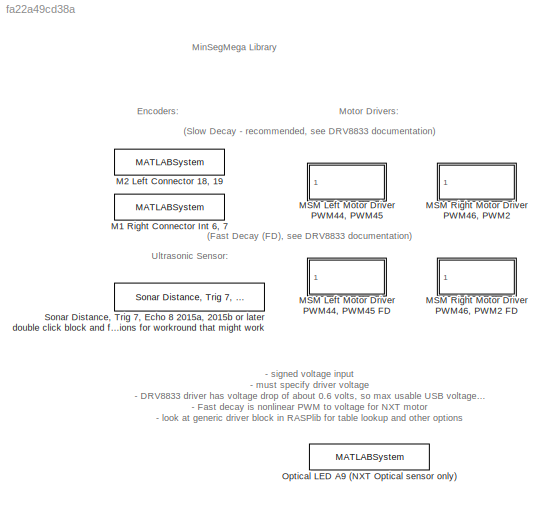
MODEL slx_fa22a49cd38a
KIND library
CONFIG AbsTol = auto
CONFIG FixedStep = auto
CONFIG MaxStep = auto
CONFIG MinStep = auto
CONFIG RelTol = 1e-3
CONFIG SampleTimeConstraint = Unconstrained
CONFIG Solver = ode45
CONFIG SolverMode = Auto
CONFIG SolverName = ode45
CONFIG StartTime = 0.0
CONFIG StopTime = 10.0
BLOCK [MATLABSystem] M1 Right Connector Int 6, 7
  Encoder = 2
  MaskDisplay = disp('soEncoder');\nport_label('output',1,'y');
  MaskType = Encoder_arduino
  PinA = 6
  PinB = 7
  Ports = [0, 1]
  System = Encoder_arduino
BLOCK [MATLABSystem] M2 Left Connector 18, 19
  Encoder = 1
  MaskDisplay = disp('soEncoder');\nport_label('output',1,'y');
  MaskType = Encoder_arduino
  PinA = 19
  PinB = 18
  Ports = [0, 1]
  System = Encoder_arduino
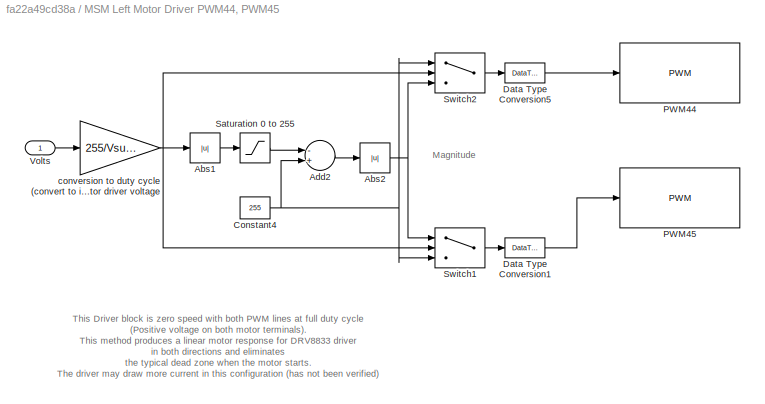
BLOCK [SubSystem] MSM Left Motor Driver PWM44, PWM45
  Ports = [1]
  RequestExecContextInheritance = off
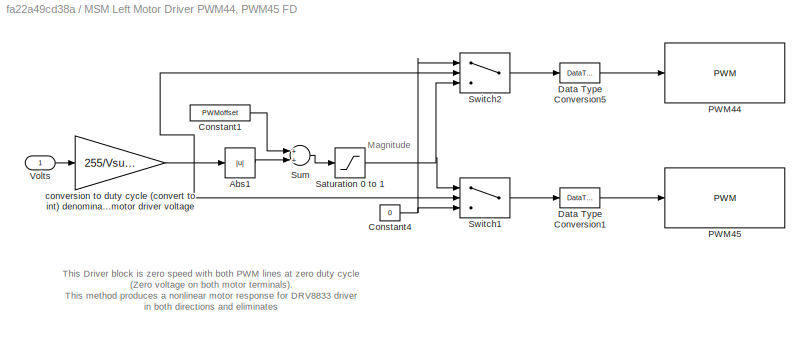
BLOCK [SubSystem] MSM Left Motor Driver PWM44, PWM45 FD
  Ports = [1]
  RequestExecContextInheritance = off
BLOCK [Abs] MSM Left Motor Driver PWM44, PWM45 FD/Abs1
  SaturateOnIntegerOverflow = off
BLOCK [Constant] MSM Left Motor Driver PWM44, PWM45 FD/Constant1
  Value = PWMoffset
BLOCK [Constant] MSM Left Motor Driver PWM44, PWM45 FD/Constant4
  Value = 0
BLOCK [DataTypeConversion] MSM Left Motor Driver PWM44, PWM45 FD/Data Type Conversion1
  OutDataTypeStr = uint8
  RndMeth = Floor
  SaturateOnIntegerOverflow = off
BLOCK [DataTypeConversion] MSM Left Motor Driver PWM44, PWM45 FD/Data Type Conversion5
  OutDataTypeStr = uint8
  RndMeth = Floor
  SaturateOnIntegerOverflow = off
BLOCK [Reference] MSM Left Motor Driver PWM44, PWM45 FD/PWM44  REF=arduinolib/PWM
  Ports = [1]
  SourceBlock = arduinolib/PWM
  SourceType = Arduino PWM
  blockPlatform = arduino
  pinNumber = 44
BLOCK [Reference] MSM Left Motor Driver PWM44, PWM45 FD/PWM45  REF=arduinolib/PWM
  Ports = [1]
  SourceBlock = arduinolib/PWM
  SourceType = Arduino PWM
  blockPlatform = arduino
  pinNumber = 45
BLOCK [Saturate] MSM Left Motor Driver PWM44, PWM45 FD/Saturation 0 to 1
  InputPortMap = u0
  LowerLimit = 0
  Ports = [1, 1]
  UpperLimit = 255
BLOCK [Sum] MSM Left Motor Driver PWM44, PWM45 FD/Sum
  InputSameDT = off
  OutDataTypeStr = Inherit: Inherit via internal rule
  Ports = [2, 1]
  SaturateOnIntegerOverflow = off
BLOCK [Switch] MSM Left Motor Driver PWM44, PWM45 FD/Switch1
  InputSameDT = off
  SaturateOnIntegerOverflow = off
BLOCK [Switch] MSM Left Motor Driver PWM44, PWM45 FD/Switch2
  InputSameDT = off
  SaturateOnIntegerOverflow = off
BLOCK [Inport] MSM Left Motor Driver PWM44, PWM45 FD/Volts
  IconDisplay = Port number
BLOCK [Gain] MSM Left Motor Driver PWM44, PWM45 FD/conversion to duty cycle (convert to int) denominator is motor driver voltage
  Gain = 255/Vsupply
  OutDataTypeStr = int16
  ParamDataTypeStr = Inherit: Inherit via internal rule
  SaturateOnIntegerOverflow = off
BLOCK [Abs] MSM Left Motor Driver PWM44, PWM45/Abs1
  SaturateOnIntegerOverflow = off
BLOCK [Abs] MSM Left Motor Driver PWM44, PWM45/Abs2
  SaturateOnIntegerOverflow = off
BLOCK [Sum] MSM Left Motor Driver PWM44, PWM45/Add2
  InputSameDT = off
  Inputs = -+
  OutDataTypeStr = Inherit: Inherit via internal rule
  Ports = [2, 1]
  SaturateOnIntegerOverflow = off
BLOCK [Constant] MSM Left Motor Driver PWM44, PWM45/Constant4
  Value = 255
BLOCK [DataTypeConversion] MSM Left Motor Driver PWM44, PWM45/Data Type Conversion1
  OutDataTypeStr = uint8
  RndMeth = Floor
  SaturateOnIntegerOverflow = off
BLOCK [DataTypeConversion] MSM Left Motor Driver PWM44, PWM45/Data Type Conversion5
  OutDataTypeStr = uint8
  RndMeth = Floor
  SaturateOnIntegerOverflow = off
BLOCK [Reference] MSM Left Motor Driver PWM44, PWM45/PWM44  REF=arduinolib/PWM
  Ports = [1]
  SourceBlock = arduinolib/PWM
  SourceType = Arduino PWM
  blockPlatform = arduino
  pinNumber = 44
BLOCK [Reference] MSM Left Motor Driver PWM44, PWM45/PWM45  REF=arduinolib/PWM
  Ports = [1]
  SourceBlock = arduinolib/PWM
  SourceType = Arduino PWM
  blockPlatform = arduino
  pinNumber = 45
BLOCK [Saturate] MSM Left Motor Driver PWM44, PWM45/Saturation 0 to 255
  InputPortMap = u0
  LowerLimit = 0
  Ports = [1, 1]
  UpperLimit = 255
BLOCK [Switch] MSM Left Motor Driver PWM44, PWM45/Switch1
  InputSameDT = off
  SaturateOnIntegerOverflow = off
BLOCK [Switch] MSM Left Motor Driver PWM44, PWM45/Switch2
  InputSameDT = off
  SaturateOnIntegerOverflow = off
BLOCK [Inport] MSM Left Motor Driver PWM44, PWM45/Volts
  IconDisplay = Port number
BLOCK [Gain] MSM Left Motor Driver PWM44, PWM45/conversion to duty cycle (convert to int) denominator is motor driver voltage
  Gain = 255/Vsupply
  OutDataTypeStr = int16
  ParamDataTypeStr = Inherit: Inherit via internal rule
  SaturateOnIntegerOverflow = off
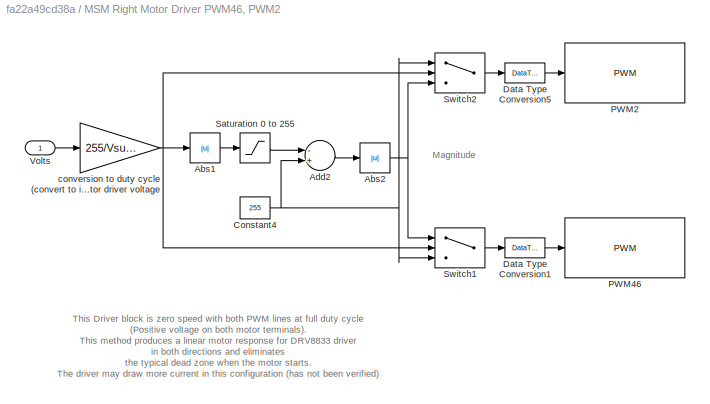
BLOCK [SubSystem] MSM Right Motor Driver PWM46, PWM2 
  Ports = [1]
  RequestExecContextInheritance = off
BLOCK [Abs] MSM Right Motor Driver PWM46, PWM2 /Abs1
  SaturateOnIntegerOverflow = off
BLOCK [Abs] MSM Right Motor Driver PWM46, PWM2 /Abs2
  SaturateOnIntegerOverflow = off
BLOCK [Sum] MSM Right Motor Driver PWM46, PWM2 /Add2
  InputSameDT = off
  Inputs = -+
  OutDataTypeStr = Inherit: Inherit via internal rule
  Ports = [2, 1]
  SaturateOnIntegerOverflow = off
BLOCK [Constant] MSM Right Motor Driver PWM46, PWM2 /Constant4
  Value = 255
BLOCK [DataTypeConversion] MSM Right Motor Driver PWM46, PWM2 /Data Type Conversion1
  OutDataTypeStr = uint8
  RndMeth = Floor
  SaturateOnIntegerOverflow = off
BLOCK [DataTypeConversion] MSM Right Motor Driver PWM46, PWM2 /Data Type Conversion5
  OutDataTypeStr = uint8
  RndMeth = Floor
  SaturateOnIntegerOverflow = off
BLOCK [Reference] MSM Right Motor Driver PWM46, PWM2 /PWM2  REF=arduinolib/PWM
  Ports = [1]
  SourceBlock = arduinolib/PWM
  SourceType = Arduino PWM
  blockPlatform = arduino
  pinNumber = 2
BLOCK [Reference] MSM Right Motor Driver PWM46, PWM2 /PWM46  REF=arduinolib/PWM
  Ports = [1]
  SourceBlock = arduinolib/PWM
  SourceType = Arduino PWM
  blockPlatform = arduino
  pinNumber = 46
BLOCK [Saturate] MSM Right Motor Driver PWM46, PWM2 /Saturation 0 to 255
  InputPortMap = u0
  LowerLimit = 0
  Ports = [1, 1]
  UpperLimit = 255
BLOCK [Switch] MSM Right Motor Driver PWM46, PWM2 /Switch1
  InputSameDT = off
  SaturateOnIntegerOverflow = off
BLOCK [Switch] MSM Right Motor Driver PWM46, PWM2 /Switch2
  InputSameDT = off
  SaturateOnIntegerOverflow = off
BLOCK [Inport] MSM Right Motor Driver PWM46, PWM2 /Volts
  IconDisplay = Port number
BLOCK [Gain] MSM Right Motor Driver PWM46, PWM2 /conversion to duty cycle (convert to int) denominator is motor driver voltage
  Gain = 255/Vsupply
  OutDataTypeStr = int16
  ParamDataTypeStr = Inherit: Inherit via internal rule
  SaturateOnIntegerOverflow = off
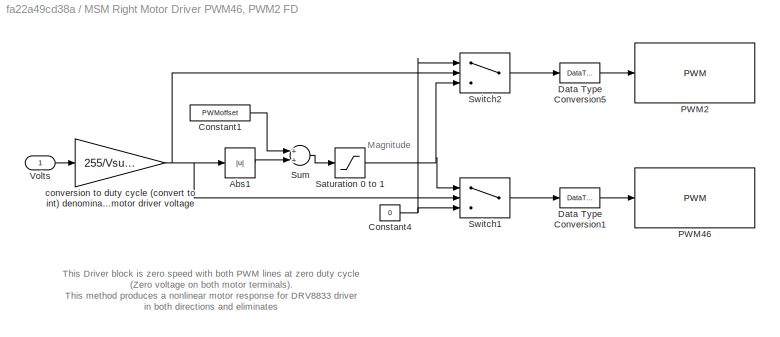
BLOCK [SubSystem] MSM Right Motor Driver PWM46, PWM2 FD
  Ports = [1]
  RequestExecContextInheritance = off
BLOCK [Abs] MSM Right Motor Driver PWM46, PWM2 FD/Abs1
  SaturateOnIntegerOverflow = off
BLOCK [Constant] MSM Right Motor Driver PWM46, PWM2 FD/Constant1
  Value = PWMoffset
BLOCK [Constant] MSM Right Motor Driver PWM46, PWM2 FD/Constant4
  Value = 0
BLOCK [DataTypeConversion] MSM Right Motor Driver PWM46, PWM2 FD/Data Type Conversion1
  OutDataTypeStr = uint8
  RndMeth = Floor
  SaturateOnIntegerOverflow = off
BLOCK [DataTypeConversion] MSM Right Motor Driver PWM46, PWM2 FD/Data Type Conversion5
  OutDataTypeStr = uint8
  RndMeth = Floor
  SaturateOnIntegerOverflow = off
BLOCK [Reference] MSM Right Motor Driver PWM46, PWM2 FD/PWM2  REF=arduinolib/PWM
  Ports = [1]
  SourceBlock = arduinolib/PWM
  SourceType = Arduino PWM
  blockPlatform = arduino
  pinNumber = 2
BLOCK [Reference] MSM Right Motor Driver PWM46, PWM2 FD/PWM46  REF=arduinolib/PWM
  Ports = [1]
  SourceBlock = arduinolib/PWM
  SourceType = Arduino PWM
  blockPlatform = arduino
  pinNumber = 46
BLOCK [Saturate] MSM Right Motor Driver PWM46, PWM2 FD/Saturation 0 to 1
  InputPortMap = u0
  LowerLimit = 0
  Ports = [1, 1]
  UpperLimit = 255
BLOCK [Sum] MSM Right Motor Driver PWM46, PWM2 FD/Sum
  InputSameDT = off
  OutDataTypeStr = Inherit: Inherit via internal rule
  Ports = [2, 1]
  SaturateOnIntegerOverflow = off
BLOCK [Switch] MSM Right Motor Driver PWM46, PWM2 FD/Switch1
  InputSameDT = off
  SaturateOnIntegerOverflow = off
BLOCK [Switch] MSM Right Motor Driver PWM46, PWM2 FD/Switch2
  InputSameDT = off
  SaturateOnIntegerOverflow = off
BLOCK [Inport] MSM Right Motor Driver PWM46, PWM2 FD/Volts
  IconDisplay = Port number
BLOCK [Gain] MSM Right Motor Driver PWM46, PWM2 FD/conversion to duty cycle (convert to int) denominator is motor driver voltage
  Gain = 255/Vsupply
  OutDataTypeStr = int16
  ParamDataTypeStr = Inherit: Inherit via internal rule
  SaturateOnIntegerOverflow = off
BLOCK [MATLABSystem] Optical LED A9 (NXT Optical sensor only)
  MaskDisplay = disp('Analog Digital Write');\nport_label('input',1,'u');
  MaskType = soDAnalogWrite
  Pin = 9
  Ports = [1]
  System = soDAnalogWrite
BLOCK [Reference] Sonar Distance, Trig 7, Echo 8 2015a, 2015b or later double click block and follow instructions for workround that might work  REF=MinSegLibrary_M1V4/Sonar Distance, Trig 7, Echo 8 2015a,
2015b or later double click block and follow
instructions for workround that might work
  EchoPin = 8
  Ports = [0, 1]
  Sonar = 1
  SourceBlock = MinSegLibrary_M1V4/Sonar Distance, Trig 7, Echo 8 2015a,\n2015b or later double click block and follow\ninstructions for workround that might work
  SourceType = soHCSR04Sonar
  TrigPin = 7
ANNOTATION (root): (Fast Decay (FD), see DRV8833 documentation)
ANNOTATION (root): (Slow Decay - recommended, see DRV8833 documentation)
ANNOTATION (root): - signed voltage input - must specify driver voltage - DRV8833 driver has voltage drop of about 0.6 volts, so max usable USB voltage is about 3.9 volts - Fast decay is nonlinear PWM to voltage for NXT motor - look at generic driver block in RASPlib for table lookup and other options
ANNOTATION (root): MinSegMega Library
ANNOTATION (root): Encoders:
ANNOTATION (root): Motor Drivers:
ANNOTATION (root): Ultrasonic Sensor:
ANNOTATION MSM Left Motor Driver PWM44, PWM45: Magnitude
ANNOTATION MSM Left Motor Driver PWM44, PWM45: This Driver block is zero speed with both PWM lines at full duty cycle (Positive voltage on both motor terminals). This method produces a linear motor response for DRV8833 driver in both directions and eliminates the typical dead zone when the motor starts. The driver may draw more current in this configuration (has not been verified) The SN754410 driver this has no effect, so the driver could alt...<+76ch>
ANNOTATION MSM Left Motor Driver PWM44, PWM45 FD: Magnitude
ANNOTATION MSM Left Motor Driver PWM44, PWM45 FD: This Driver block is zero speed with both PWM lines at zero duty cycle (Zero voltage on both motor terminals). This method produces a nonlinear motor response for DRV8833 driver in both directions and eliminates
ANNOTATION MSM Right Motor Driver PWM46, PWM2 : Magnitude
ANNOTATION MSM Right Motor Driver PWM46, PWM2 : This Driver block is zero speed with both PWM lines at full duty cycle (Positive voltage on both motor terminals). This method produces a linear motor response for DRV8833 driver in both directions and eliminates the typical dead zone when the motor starts. The driver may draw more current in this configuration (has not been verified) The SN754410 driver this has no effect, so the driver could alt...<+76ch>
ANNOTATION MSM Right Motor Driver PWM46, PWM2 FD: Magnitude
ANNOTATION MSM Right Motor Driver PWM46, PWM2 FD: This Driver block is zero speed with both PWM lines at zero duty cycle (Zero voltage on both motor terminals). This method produces a nonlinear motor response for DRV8833 driver in both directions and eliminates
LINE MSM Left Motor Driver PWM44, PWM45 FD/Abs1:1 -> MSM Left Motor Driver PWM44, PWM45 FD/Sum:2
LINE MSM Left Motor Driver PWM44, PWM45 FD/Constant1:1 -> MSM Left Motor Driver PWM44, PWM45 FD/Sum:1
NET MSM Left Motor Driver PWM44, PWM45 FD/Constant4:1 -> MSM Left Motor Driver PWM44, PWM45 FD/Switch1:3, MSM Left Motor Driver PWM44, PWM45 FD/Switch2:1
LINE MSM Left Motor Driver PWM44, PWM45 FD/Data Type Conversion1:1 -> MSM Left Motor Driver PWM44, PWM45 FD/PWM45:1
LINE MSM Left Motor Driver PWM44, PWM45 FD/Data Type Conversion5:1 -> MSM Left Motor Driver PWM44, PWM45 FD/PWM44:1
NET MSM Left Motor Driver PWM44, PWM45 FD/Saturation 0 to 1:1 -> MSM Left Motor Driver PWM44, PWM45 FD/Switch1:1, MSM Left Motor Driver PWM44, PWM45 FD/Switch2:3
LINE MSM Left Motor Driver PWM44, PWM45 FD/Sum:1 -> MSM Left Motor Driver PWM44, PWM45 FD/Saturation 0 to 1:1
LINE MSM Left Motor Driver PWM44, PWM45 FD/Switch1:1 -> MSM Left Motor Driver PWM44, PWM45 FD/Data Type Conversion1:1
LINE MSM Left Motor Driver PWM44, PWM45 FD/Switch2:1 -> MSM Left Motor Driver PWM44, PWM45 FD/Data Type Conversion5:1
LINE MSM Left Motor Driver PWM44, PWM45 FD/Volts:1 -> MSM Left Motor Driver PWM44, PWM45 FD/conversion to duty cycle (convert to int) denominator is motor driver voltage:1
NET MSM Left Motor Driver PWM44, PWM45 FD/conversion to duty cycle (convert to int) denominator is motor driver voltage:1 -> MSM Left Motor Driver PWM44, PWM45 FD/Abs1:1, MSM Left Motor Driver PWM44, PWM45 FD/Switch1:2, MSM Left Motor Driver PWM44, PWM45 FD/Switch2:2
LINE MSM Left Motor Driver PWM44, PWM45/Abs1:1 -> MSM Left Motor Driver PWM44, PWM45/Saturation 0 to 255:1
NET MSM Left Motor Driver PWM44, PWM45/Abs2:1 -> MSM Left Motor Driver PWM44, PWM45/Switch1:1, MSM Left Motor Driver PWM44, PWM45/Switch2:3
LINE MSM Left Motor Driver PWM44, PWM45/Add2:1 -> MSM Left Motor Driver PWM44, PWM45/Abs2:1
NET MSM Left Motor Driver PWM44, PWM45/Constant4:1 -> MSM Left Motor Driver PWM44, PWM45/Add2:2, MSM Left Motor Driver PWM44, PWM45/Switch1:3, MSM Left Motor Driver PWM44, PWM45/Switch2:1
LINE MSM Left Motor Driver PWM44, PWM45/Data Type Conversion1:1 -> MSM Left Motor Driver PWM44, PWM45/PWM45:1
LINE MSM Left Motor Driver PWM44, PWM45/Data Type Conversion5:1 -> MSM Left Motor Driver PWM44, PWM45/PWM44:1
LINE MSM Left Motor Driver PWM44, PWM45/Saturation 0 to 255:1 -> MSM Left Motor Driver PWM44, PWM45/Add2:1
LINE MSM Left Motor Driver PWM44, PWM45/Switch1:1 -> MSM Left Motor Driver PWM44, PWM45/Data Type Conversion1:1
LINE MSM Left Motor Driver PWM44, PWM45/Switch2:1 -> MSM Left Motor Driver PWM44, PWM45/Data Type Conversion5:1
LINE MSM Left Motor Driver PWM44, PWM45/Volts:1 -> MSM Left Motor Driver PWM44, PWM45/conversion to duty cycle (convert to int) denominator is motor driver voltage:1
NET MSM Left Motor Driver PWM44, PWM45/conversion to duty cycle (convert to int) denominator is motor driver voltage:1 -> MSM Left Motor Driver PWM44, PWM45/Abs1:1, MSM Left Motor Driver PWM44, PWM45/Switch1:2, MSM Left Motor Driver PWM44, PWM45/Switch2:2
LINE MSM Right Motor Driver PWM46, PWM2 /Abs1:1 -> MSM Right Motor Driver PWM46, PWM2 /Saturation 0 to 255:1
NET MSM Right Motor Driver PWM46, PWM2 /Abs2:1 -> MSM Right Motor Driver PWM46, PWM2 /Switch1:1, MSM Right Motor Driver PWM46, PWM2 /Switch2:3
LINE MSM Right Motor Driver PWM46, PWM2 /Add2:1 -> MSM Right Motor Driver PWM46, PWM2 /Abs2:1
NET MSM Right Motor Driver PWM46, PWM2 /Constant4:1 -> MSM Right Motor Driver PWM46, PWM2 /Add2:2, MSM Right Motor Driver PWM46, PWM2 /Switch1:3, MSM Right Motor Driver PWM46, PWM2 /Switch2:1
LINE MSM Right Motor Driver PWM46, PWM2 /Data Type Conversion1:1 -> MSM Right Motor Driver PWM46, PWM2 /PWM46:1
LINE MSM Right Motor Driver PWM46, PWM2 /Data Type Conversion5:1 -> MSM Right Motor Driver PWM46, PWM2 /PWM2:1
LINE MSM Right Motor Driver PWM46, PWM2 /Saturation 0 to 255:1 -> MSM Right Motor Driver PWM46, PWM2 /Add2:1
LINE MSM Right Motor Driver PWM46, PWM2 /Switch1:1 -> MSM Right Motor Driver PWM46, PWM2 /Data Type Conversion1:1
LINE MSM Right Motor Driver PWM46, PWM2 /Switch2:1 -> MSM Right Motor Driver PWM46, PWM2 /Data Type Conversion5:1
LINE MSM Right Motor Driver PWM46, PWM2 /Volts:1 -> MSM Right Motor Driver PWM46, PWM2 /conversion to duty cycle (convert to int) denominator is motor driver voltage:1
NET MSM Right Motor Driver PWM46, PWM2 /conversion to duty cycle (convert to int) denominator is motor driver voltage:1 -> MSM Right Motor Driver PWM46, PWM2 /Abs1:1, MSM Right Motor Driver PWM46, PWM2 /Switch1:2, MSM Right Motor Driver PWM46, PWM2 /Switch2:2
LINE MSM Right Motor Driver PWM46, PWM2 FD/Abs1:1 -> MSM Right Motor Driver PWM46, PWM2 FD/Sum:2
LINE MSM Right Motor Driver PWM46, PWM2 FD/Constant1:1 -> MSM Right Motor Driver PWM46, PWM2 FD/Sum:1
NET MSM Right Motor Driver PWM46, PWM2 FD/Constant4:1 -> MSM Right Motor Driver PWM46, PWM2 FD/Switch1:3, MSM Right Motor Driver PWM46, PWM2 FD/Switch2:1
LINE MSM Right Motor Driver PWM46, PWM2 FD/Data Type Conversion1:1 -> MSM Right Motor Driver PWM46, PWM2 FD/PWM46:1
LINE MSM Right Motor Driver PWM46, PWM2 FD/Data Type Conversion5:1 -> MSM Right Motor Driver PWM46, PWM2 FD/PWM2:1
NET MSM Right Motor Driver PWM46, PWM2 FD/Saturation 0 to 1:1 -> MSM Right Motor Driver PWM46, PWM2 FD/Switch1:1, MSM Right Motor Driver PWM46, PWM2 FD/Switch2:3
LINE MSM Right Motor Driver PWM46, PWM2 FD/Sum:1 -> MSM Right Motor Driver PWM46, PWM2 FD/Saturation 0 to 1:1
LINE MSM Right Motor Driver PWM46, PWM2 FD/Switch1:1 -> MSM Right Motor Driver PWM46, PWM2 FD/Data Type Conversion1:1
LINE MSM Right Motor Driver PWM46, PWM2 FD/Switch2:1 -> MSM Right Motor Driver PWM46, PWM2 FD/Data Type Conversion5:1
LINE MSM Right Motor Driver PWM46, PWM2 FD/Volts:1 -> MSM Right Motor Driver PWM46, PWM2 FD/conversion to duty cycle (convert to int) denominator is motor driver voltage:1
NET MSM Right Motor Driver PWM46, PWM2 FD/conversion to duty cycle (convert to int) denominator is motor driver voltage:1 -> MSM Right Motor Driver PWM46, PWM2 FD/Abs1:1, MSM Right Motor Driver PWM46, PWM2 FD/Switch1:2, MSM Right Motor Driver PWM46, PWM2 FD/Switch2:2
note: NET lines group one-source signal fan-out (src -> all destinations, sorted); 1:1 wires keep LINE
